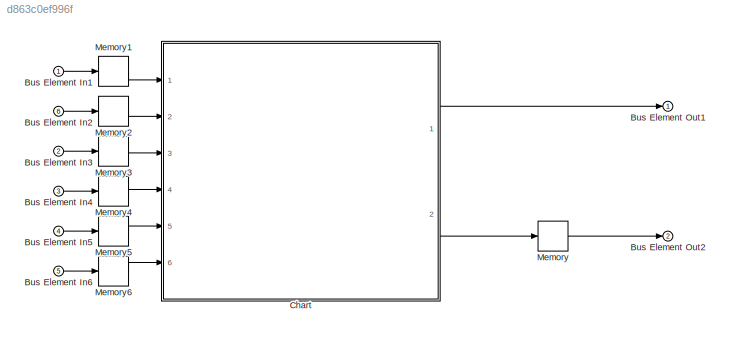
MODEL slx_d863c0ef996f
KIND model
CONFIG AbsTol = auto
CONFIG EnableMultiTasking = off
CONFIG FixedStep = auto
CONFIG MaxStep = auto
CONFIG MinStep = auto
CONFIG RelTol = 1e-3
CONFIG SampleTimeConstraint = Unconstrained
CONFIG Solver = VariableStepAuto
CONFIG SolverName = VariableStepAuto
CONFIG StartTime = 0.0
CONFIG StopTime = 10.0
BLOCK [Inport] Bus Element In1
  IconDisplay = Port number
BLOCK [Inport] Bus Element In2
  IconDisplay = Port number
  Port = 6
BLOCK [Inport] Bus Element In3
  IconDisplay = Port number
  Port = 2
BLOCK [Inport] Bus Element In4
  IconDisplay = Port number
  Port = 3
BLOCK [Inport] Bus Element In5
  IconDisplay = Port number
  Port = 4
BLOCK [Inport] Bus Element In6
  IconDisplay = Port number
  Port = 5
BLOCK [Outport] Bus Element Out1
  IconDisplay = Port number
BLOCK [Outport] Bus Element Out2
  IconDisplay = Port number
  Port = 2
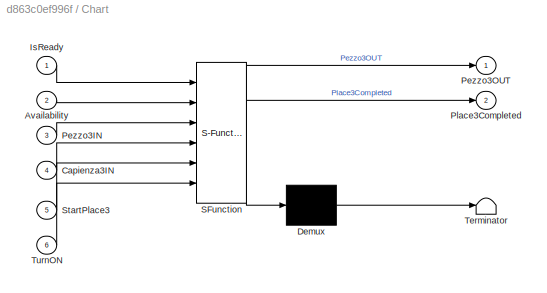
BLOCK [SubSystem] Chart
  BlockKeywords = __PRM__SERIALIZED__DATA__:Stateflow Chart,Stateflow Diagram
  ErrorFcn = Stateflow.Translate.translate
  PermitHierarchicalResolution = ExplicitOnly
  Ports = [6, 2]
  RequestExecContextInheritance = off
  SFBlockType = Chart
  TreatAsAtomicUnit = on
BLOCK [Demux] Chart/ Demux 
  Outputs = 1
  Ports = [1, 1]
BLOCK [S-Function] Chart/ SFunction 
  EnableBusSupport = on
  FunctionName = sf_sfun
  PortCounts = [6 3]
  Ports = [6, 3]
  SFcnIsStateOwnerBlock = off
  SFunctionDeploymentMode = off
  Tag = Stateflow S-Function Place3 3
BLOCK [Terminator] Chart/ Terminator 
BLOCK [Inport] Chart/Availability
  IconDisplay = Port number
  Port = 2
BLOCK [Inport] Chart/Capienza3IN
  IconDisplay = Port number
  Port = 4
BLOCK [Inport] Chart/IsReady
  IconDisplay = Port number
BLOCK [Inport] Chart/Pezzo3IN
  IconDisplay = Port number
  Port = 3
BLOCK [Outport] Chart/Pezzo3OUT
  IconDisplay = Port number
BLOCK [Outport] Chart/Place3Completed
  IconDisplay = Port number
  Port = 2
BLOCK [Inport] Chart/StartPlace3
  IconDisplay = Port number
  Port = 5
BLOCK [Inport] Chart/TurnON
  IconDisplay = Port number
  Port = 6
BLOCK [Memory] Memory
BLOCK [Memory] Memory1
BLOCK [Memory] Memory2
BLOCK [Memory] Memory3
BLOCK [Memory] Memory4
BLOCK [Memory] Memory5
BLOCK [Memory] Memory6
LINE Bus Element In1:1 -> Memory1:1
LINE Bus Element In2:1 -> Memory2:1
LINE Bus Element In3:1 -> Memory3:1
LINE Bus Element In4:1 -> Memory4:1
LINE Bus Element In5:1 -> Memory5:1
LINE Bus Element In6:1 -> Memory6:1
LINE Chart:1 -> Bus Element Out1:1
LINE Chart:2 -> Memory:1
LINE Memory1:1 -> Chart:1
LINE Memory2:1 -> Chart:2
LINE Memory3:1 -> Chart:3
LINE Memory4:1 -> Chart:4
LINE Memory5:1 -> Chart:5
LINE Memory6:1 -> Chart:6
LINE Memory:1 -> Bus Element Out2:1
CHART Chart states=6 transitions=11
  STATE_LABEL 'Idle\nPezzo3OUT=0;\nPlace3Completed=0;'
  STATE_LABEL 'Waiting\nPezzo3OUT=0;\nPlace3Completed=0;'
  STATE_LABEL 'Active1'
  STATE_LABEL 'Working'
  STATE_LABEL 'Place\nduring:\nPezzo3OUT=1;\nPlace3Completed = 1;\npause(0.1);'
  STATE_LABEL 'Pick\npause(0.1);'
